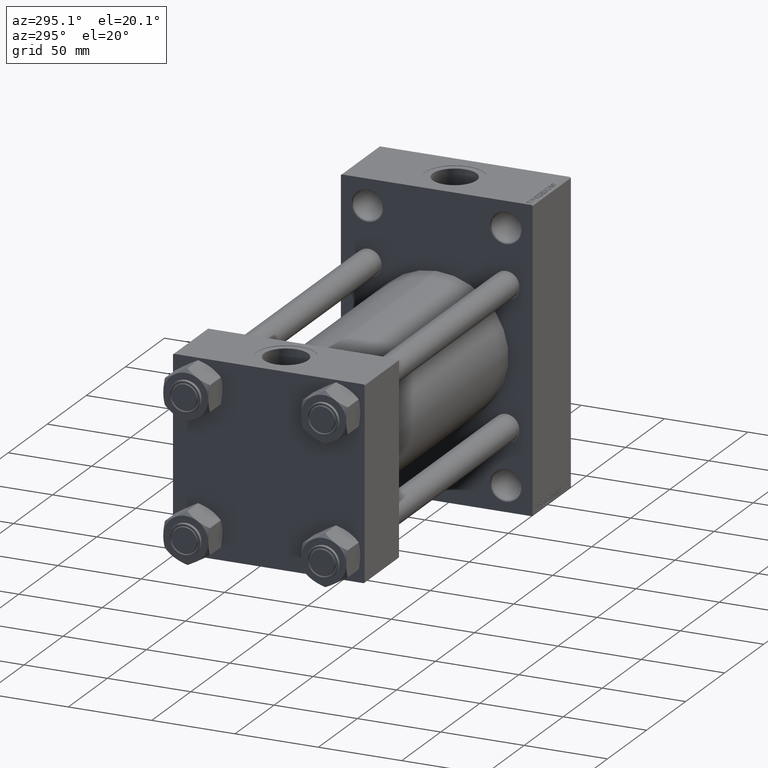
[diagram: clean part render]
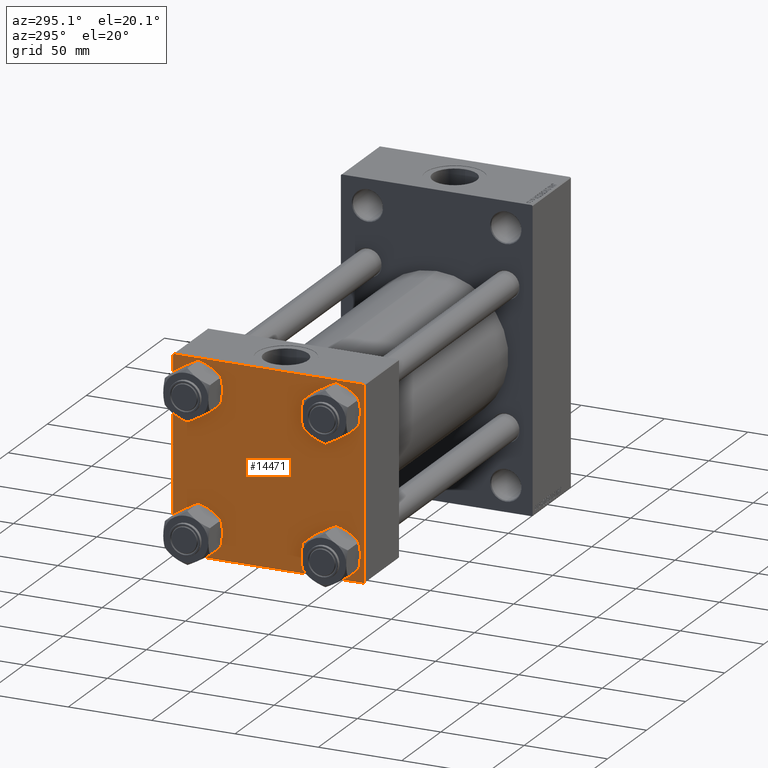
[diagram: same view with one face highlighted and labeled with its STEP entity id]
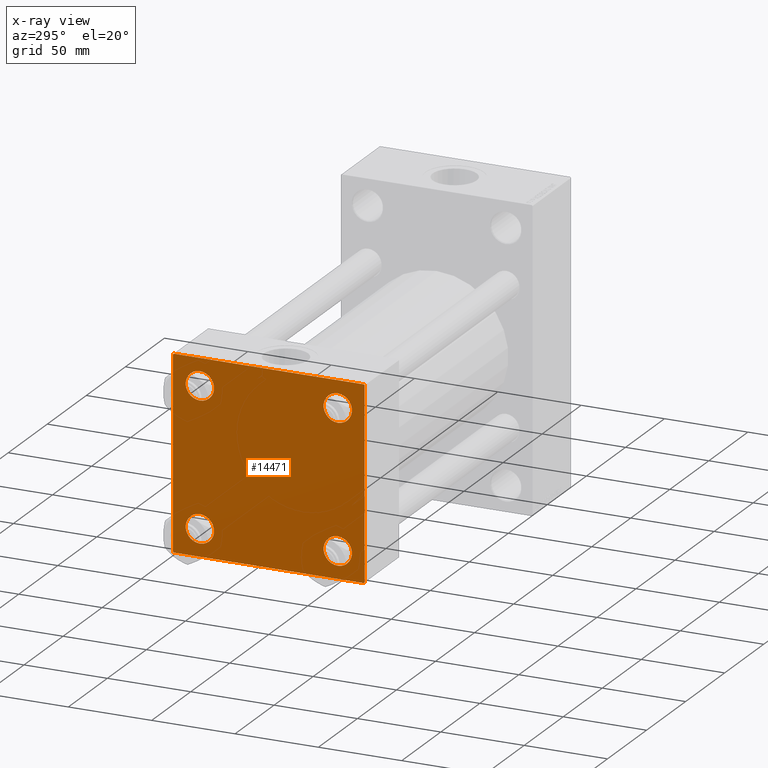
[diagram: x-ray of the same camera — body ghosted, the highlighted face saturated]
A machine part, auxiliary view. The second image highlights one B-rep face of the part: STEP entity #14471.
The next image is the same camera in x-ray: the body ghosted, the highlighted face saturated — about 0% of this face is hidden behind the body in this view.
In plain terms, the highlighted planar face has unit normal (-1, 0, 0).
Its self-contained STEP definition (entity closure, byte-faithful):
#75 = VERTEX_POINT ( 'NONE', #30683 ) ;
#1329 = EDGE_CURVE ( 'NONE', #30908, #46286, #15505, .T. ) ;
#1450 = CARTESIAN_POINT ( 'NONE',  ( 0.000000000000000000, -41.34999999999998721, 49.85000000000000142 ) ) ;
#1575 = DIRECTION ( 'NONE',  ( 0.000000000000000000, 0.000000000000000000, -1.000000000000000000 ) ) ;
#1825 = CARTESIAN_POINT ( 'NONE',  ( 0.000000000000000000, 57.50000000000000000, -57.49999999999999289 ) ) ;
#2663 = DIRECTION ( 'NONE',  ( 1.000000000000000000, -0.000000000000000000, 0.000000000000000000 ) ) ;
#3059 = CARTESIAN_POINT ( 'NONE',  ( 0.000000000000000000, -57.49999999999999289, -57.00000000000003553 ) ) ;
#3317 = CARTESIAN_POINT ( 'NONE',  ( 0.000000000000000000, 41.34999999999999432, 41.34999999999999432 ) ) ;
#3381 = CARTESIAN_POINT ( 'NONE',  ( 0.000000000000000000, -41.34999999999998721, 41.35000000000000142 ) ) ;
#3542 = AXIS2_PLACEMENT_3D ( 'NONE', #23499, #30719, #27102 ) ;
#4453 = CARTESIAN_POINT ( 'NONE',  ( 0.000000000000000000, -41.34999999999998721, 41.35000000000000142 ) ) ;
#4502 = AXIS2_PLACEMENT_3D ( 'NONE', #3317, #32708, #39452 ) ;
#4534 = LINE ( 'NONE', #38244, #24153 ) ;
#4668 = DIRECTION ( 'NONE',  ( 0.000000000000000000, 0.000000000000000000, 1.000000000000000000 ) ) ;
#4755 = EDGE_CURVE ( 'NONE', #28635, #38207, #13303, .T. ) ;
#5291 = CIRCLE ( 'NONE', #32212, 8.499999999999992895 ) ;
#5374 = LINE ( 'NONE', #45610, #27444 ) ;
#5680 = VECTOR ( 'NONE', #1575, 1000.000000000000000 ) ;
#5921 = CIRCLE ( 'NONE', #20532, 8.499999999999992895 ) ;
#6114 = CARTESIAN_POINT ( 'NONE',  ( 0.000000000000000000, -41.34999999999998721, -49.85000000000000142 ) ) ;
#6909 = EDGE_LOOP ( 'NONE', ( #26885, #24923, #42073, #44176, #24608, #14089, #46248, #32231 ) ) ;
#7321 = CIRCLE ( 'NONE', #35787, 8.499999999999992895 ) ;
#8080 = CARTESIAN_POINT ( 'NONE',  ( 0.000000000000000000, 41.34999999999999432, -32.85000000000000142 ) ) ;
#8678 = AXIS2_PLACEMENT_3D ( 'NONE', #20744, #39515, #43144 ) ;
#9028 = CARTESIAN_POINT ( 'NONE',  ( 0.000000000000000000, 41.34999999999999432, -41.34999999999999432 ) ) ;
#9131 = EDGE_LOOP ( 'NONE', ( #18303, #12207 ) ) ;
#9495 = CARTESIAN_POINT ( 'NONE',  ( 0.000000000000000000, -41.34999999999998721, -32.85000000000000853 ) ) ;
#9660 = FACE_BOUND ( 'NONE', #11316, .T. ) ;
#9902 = DIRECTION ( 'NONE',  ( 0.000000000000000000, 0.000000000000000000, 1.000000000000000000 ) ) ;
#9967 = VERTEX_POINT ( 'NONE', #27059 ) ;
#10103 = AXIS2_PLACEMENT_3D ( 'NONE', #25899, #40595, #4668 ) ;
#11316 = EDGE_LOOP ( 'NONE', ( #18018, #29484 ) ) ;
#11718 = LINE ( 'NONE', #15103, #22095 ) ;
#12166 = DIRECTION ( 'NONE',  ( 0.000000000000000000, 0.000000000000000000, 1.000000000000000000 ) ) ;
#12207 = ORIENTED_EDGE ( 'NONE', *, *, #28645, .T. ) ;
#12495 = EDGE_LOOP ( 'NONE', ( #34632, #40658 ) ) ;
#13303 = CIRCLE ( 'NONE', #30965, 8.499999999999992895 ) ;
#13957 = DIRECTION ( 'NONE',  ( 0.000000000000000000, 0.000000000000000000, 1.000000000000000000 ) ) ;
#13983 = FACE_OUTER_BOUND ( 'NONE', #6909, .T. ) ;
#14089 = ORIENTED_EDGE ( 'NONE', *, *, #24402, .T. ) ;
#14471 = ADVANCED_FACE ( 'NONE', ( #31575, #32527, #31812, #9660, #13983 ), #17362, .T. ) ;
#15103 = CARTESIAN_POINT ( 'NONE',  ( 0.000000000000000000, 57.25000000000119371, -57.24999999999880629 ) ) ;
#15305 = DIRECTION ( 'NONE',  ( 1.000000000000000000, -0.000000000000000000, 0.000000000000000000 ) ) ;
#15505 = CIRCLE ( 'NONE', #10103, 8.499999999999992895 ) ;
#15883 = LINE ( 'NONE', #23348, #18908 ) ;
#15943 = CARTESIAN_POINT ( 'NONE',  ( 0.000000000000000000, 41.34999999999999432, 49.84999999999999432 ) ) ;
#16431 = VERTEX_POINT ( 'NONE', #44806 ) ;
#17362 = PLANE ( 'NONE',  #8678 ) ;
#17688 = EDGE_CURVE ( 'NONE', #16431, #25511, #4534, .T. ) ;
#18018 = ORIENTED_EDGE ( 'NONE', *, *, #33752, .T. ) ;
#18169 = EDGE_CURVE ( 'NONE', #24071, #45091, #41814, .T. ) ;
#18303 = ORIENTED_EDGE ( 'NONE', *, *, #1329, .T. ) ;
#18908 = VECTOR ( 'NONE', #45996, 1000.000000000000000 ) ;
#19621 = VERTEX_POINT ( 'NONE', #29401 ) ;
#20532 = AXIS2_PLACEMENT_3D ( 'NONE', #35648, #38776, #13957 ) ;
#20557 = DIRECTION ( 'NONE',  ( 0.000000000000000000, 0.7071067811865573427, -0.7071067811865376918 ) ) ;
#20666 = EDGE_LOOP ( 'NONE', ( #46561, #43313 ) ) ;
#20744 = CARTESIAN_POINT ( 'NONE',  ( 0.000000000000000000, 0.000000000000000000, 0.000000000000000000 ) ) ;
#22090 = DIRECTION ( 'NONE',  ( 0.000000000000000000, -1.000000000000000000, -1.810146235801885567E-16 ) ) ;
#22095 = VECTOR ( 'NONE', #22801, 1000.000000000000000 ) ;
#22801 = DIRECTION ( 'NONE',  ( -0.000000000000000000, -0.7071067811865328068, -0.7071067811865622277 ) ) ;
#23238 = DIRECTION ( 'NONE',  ( 0.000000000000000000, 0.000000000000000000, 1.000000000000000000 ) ) ;
#23348 = CARTESIAN_POINT ( 'NONE',  ( 0.000000000000000000, -57.24999999999962341, -57.25000000000041211 ) ) ;
#23472 = EDGE_CURVE ( 'NONE', #19621, #42114, #40485, .T. ) ;
#23499 = CARTESIAN_POINT ( 'NONE',  ( 0.000000000000000000, 41.34999999999999432, 41.34999999999999432 ) ) ;
#23692 = DIRECTION ( 'NONE',  ( -0.000000000000000000, 0.7071067811865574537, 0.7071067811865376918 ) ) ;
#24071 = VERTEX_POINT ( 'NONE', #36597 ) ;
#24153 = VECTOR ( 'NONE', #34400, 1000.000000000000000 ) ;
#24402 = EDGE_CURVE ( 'NONE', #16431, #35068, #5374, .T. ) ;
#24608 = ORIENTED_EDGE ( 'NONE', *, *, #17688, .F. ) ;
#24923 = ORIENTED_EDGE ( 'NONE', *, *, #25553, .T. ) ;
#25511 = VERTEX_POINT ( 'NONE', #3059 ) ;
#25553 = EDGE_CURVE ( 'NONE', #45091, #9967, #11718, .T. ) ;
#25600 = EDGE_CURVE ( 'NONE', #39642, #44131, #32083, .T. ) ;
#25899 = CARTESIAN_POINT ( 'NONE',  ( 0.000000000000000000, -41.34999999999998721, -41.35000000000000142 ) ) ;
#25904 = VECTOR ( 'NONE', #22090, 1000.000000000000000 ) ;
#26418 = DIRECTION ( 'NONE',  ( 1.000000000000000000, -0.000000000000000000, 0.000000000000000000 ) ) ;
#26885 = ORIENTED_EDGE ( 'NONE', *, *, #18169, .T. ) ;
#27059 = CARTESIAN_POINT ( 'NONE',  ( 0.000000000000000000, 57.00000000000002842, -57.49999999999999289 ) ) ;
#27102 = DIRECTION ( 'NONE',  ( 0.000000000000000000, 0.000000000000000000, 1.000000000000000000 ) ) ;
#27122 = CARTESIAN_POINT ( 'NONE',  ( 0.000000000000000000, 41.34999999999999432, -41.34999999999999432 ) ) ;
#27444 = VECTOR ( 'NONE', #23692, 999.9999999999998863 ) ;
#27715 = EDGE_CURVE ( 'NONE', #45592, #35068, #30020, .T. ) ;
#28017 = LINE ( 'NONE', #31392, #28141 ) ;
#28141 = VECTOR ( 'NONE', #20557, 1000.000000000000114 ) ;
#28233 = AXIS2_PLACEMENT_3D ( 'NONE', #27122, #26418, #41587 ) ;
#28635 = VERTEX_POINT ( 'NONE', #46978 ) ;
#28645 = EDGE_CURVE ( 'NONE', #46286, #30908, #5921, .T. ) ;
#29401 = CARTESIAN_POINT ( 'NONE',  ( 0.000000000000000000, 41.34999999999999432, 32.85000000000000142 ) ) ;
#29484 = ORIENTED_EDGE ( 'NONE', *, *, #23472, .T. ) ;
#29952 = EDGE_CURVE ( 'NONE', #9967, #75, #34827, .T. ) ;
#30020 = LINE ( 'NONE', #33637, #25904 ) ;
#30023 = CARTESIAN_POINT ( 'NONE',  ( 0.000000000000000000, 57.50000000000000000, 57.50000000000001421 ) ) ;
#30234 = CARTESIAN_POINT ( 'NONE',  ( 0.000000000000000000, -56.99999999999997158, 57.49999999999999289 ) ) ;
#30468 = DIRECTION ( 'NONE',  ( 1.000000000000000000, -0.000000000000000000, 0.000000000000000000 ) ) ;
#30683 = CARTESIAN_POINT ( 'NONE',  ( 0.000000000000000000, -57.00000000000001421, -57.50000000000000711 ) ) ;
#30719 = DIRECTION ( 'NONE',  ( 1.000000000000000000, -0.000000000000000000, 0.000000000000000000 ) ) ;
#30908 = VERTEX_POINT ( 'NONE', #9495 ) ;
#30965 = AXIS2_PLACEMENT_3D ( 'NONE', #4453, #15305, #23238 ) ;
#31392 = CARTESIAN_POINT ( 'NONE',  ( 0.000000000000000000, 57.24999999999922551, 57.25000000000081712 ) ) ;
#31575 = FACE_BOUND ( 'NONE', #12495, .T. ) ;
#31812 = FACE_BOUND ( 'NONE', #20666, .T. ) ;
#32083 = CIRCLE ( 'NONE', #28233, 8.499999999999992895 ) ;
#32212 = AXIS2_PLACEMENT_3D ( 'NONE', #3381, #2663, #9902 ) ;
#32231 = ORIENTED_EDGE ( 'NONE', *, *, #41808, .T. ) ;
#32527 = FACE_BOUND ( 'NONE', #9131, .T. ) ;
#32708 = DIRECTION ( 'NONE',  ( 1.000000000000000000, -0.000000000000000000, 0.000000000000000000 ) ) ;
#33518 = EDGE_CURVE ( 'NONE', #38207, #28635, #5291, .T. ) ;
#33637 = CARTESIAN_POINT ( 'NONE',  ( 0.000000000000000000, 57.50000000000000000, 57.50000000000001421 ) ) ;
#33752 = EDGE_CURVE ( 'NONE', #42114, #19621, #39920, .T. ) ;
#34400 = DIRECTION ( 'NONE',  ( 0.000000000000000000, 6.033820786006285224E-17, -1.000000000000000000 ) ) ;
#34632 = ORIENTED_EDGE ( 'NONE', *, *, #33518, .T. ) ;
#34827 = LINE ( 'NONE', #1825, #36729 ) ;
#35068 = VERTEX_POINT ( 'NONE', #30234 ) ;
#35648 = CARTESIAN_POINT ( 'NONE',  ( 0.000000000000000000, -41.34999999999998721, -41.35000000000000142 ) ) ;
#35787 = AXIS2_PLACEMENT_3D ( 'NONE', #9028, #30468, #12166 ) ;
#36207 = CARTESIAN_POINT ( 'NONE',  ( 0.000000000000000000, 57.00000000000001421, 57.50000000000001421 ) ) ;
#36597 = CARTESIAN_POINT ( 'NONE',  ( 0.000000000000000000, 57.50000000000000000, 57.00000000000004263 ) ) ;
#36729 = VECTOR ( 'NONE', #45928, 1000.000000000000000 ) ;
#38207 = VERTEX_POINT ( 'NONE', #1450 ) ;
#38244 = CARTESIAN_POINT ( 'NONE',  ( 0.000000000000000000, -57.50000000000000000, 57.49999999999999289 ) ) ;
#38776 = DIRECTION ( 'NONE',  ( 1.000000000000000000, -0.000000000000000000, 0.000000000000000000 ) ) ;
#39452 = DIRECTION ( 'NONE',  ( 0.000000000000000000, 0.000000000000000000, 1.000000000000000000 ) ) ;
#39515 = DIRECTION ( 'NONE',  ( -1.000000000000000000, 0.000000000000000000, -0.000000000000000000 ) ) ;
#39642 = VERTEX_POINT ( 'NONE', #8080 ) ;
#39680 = CARTESIAN_POINT ( 'NONE',  ( 0.000000000000000000, 41.34999999999999432, -49.84999999999999432 ) ) ;
#39730 = EDGE_CURVE ( 'NONE', #44131, #39642, #7321, .T. ) ;
#39920 = CIRCLE ( 'NONE', #4502, 8.499999999999992895 ) ;
#40485 = CIRCLE ( 'NONE', #3542, 8.499999999999992895 ) ;
#40595 = DIRECTION ( 'NONE',  ( 1.000000000000000000, -0.000000000000000000, 0.000000000000000000 ) ) ;
#40658 = ORIENTED_EDGE ( 'NONE', *, *, #4755, .T. ) ;
#41587 = DIRECTION ( 'NONE',  ( 0.000000000000000000, 0.000000000000000000, 1.000000000000000000 ) ) ;
#41808 = EDGE_CURVE ( 'NONE', #45592, #24071, #28017, .T. ) ;
#41814 = LINE ( 'NONE', #30023, #5680 ) ;
#42073 = ORIENTED_EDGE ( 'NONE', *, *, #29952, .T. ) ;
#42114 = VERTEX_POINT ( 'NONE', #15943 ) ;
#43144 = DIRECTION ( 'NONE',  ( -0.000000000000000000, 0.000000000000000000, 1.000000000000000000 ) ) ;
#43313 = ORIENTED_EDGE ( 'NONE', *, *, #39730, .T. ) ;
#44131 = VERTEX_POINT ( 'NONE', #39680 ) ;
#44176 = ORIENTED_EDGE ( 'NONE', *, *, #44849, .T. ) ;
#44806 = CARTESIAN_POINT ( 'NONE',  ( 0.000000000000000000, -57.50000000000000000, 56.99999999999997868 ) ) ;
#44849 = EDGE_CURVE ( 'NONE', #75, #25511, #15883, .T. ) ;
#45091 = VERTEX_POINT ( 'NONE', #47119 ) ;
#45592 = VERTEX_POINT ( 'NONE', #36207 ) ;
#45610 = CARTESIAN_POINT ( 'NONE',  ( -0.000000000000000000, -57.24999999999918998, 57.25000000000078160 ) ) ;
#45928 = DIRECTION ( 'NONE',  ( 0.000000000000000000, -1.000000000000000000, -1.206764157201257291E-16 ) ) ;
#45996 = DIRECTION ( 'NONE',  ( 0.000000000000000000, -0.7071067811865524577, 0.7071067811865426878 ) ) ;
#46248 = ORIENTED_EDGE ( 'NONE', *, *, #27715, .F. ) ;
#46286 = VERTEX_POINT ( 'NONE', #6114 ) ;
#46561 = ORIENTED_EDGE ( 'NONE', *, *, #25600, .T. ) ;
#46978 = CARTESIAN_POINT ( 'NONE',  ( 0.000000000000000000, -41.34999999999998721, 32.85000000000000853 ) ) ;
#47119 = CARTESIAN_POINT ( 'NONE',  ( 0.000000000000000000, 57.50000000000000000, -56.99999999999997158 ) ) ;